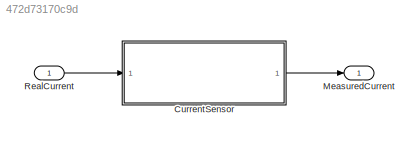
MODEL slx_472d73170c9d
KIND model
CONFIG AbsTol = auto
CONFIG EnableMultiTasking = off
CONFIG FixedStep = auto
CONFIG MaxStep = auto
CONFIG MinStep = auto
CONFIG RelTol = 1e-3
CONFIG SampleTimeConstraint = Unconstrained
CONFIG SolverName = VariableStepAuto
CONFIG StartTime = 0.0
CONFIG StopTime = 10.0
BLOCK [SubSystem] CurrentSensor
  ReferencedSubsystem = CurrentSensor
BLOCK [Outport] MeasuredCurrent
BLOCK [Inport] RealCurrent
LINE CurrentSensor:1 -> MeasuredCurrent:1
LINE RealCurrent:1 -> CurrentSensor:1
